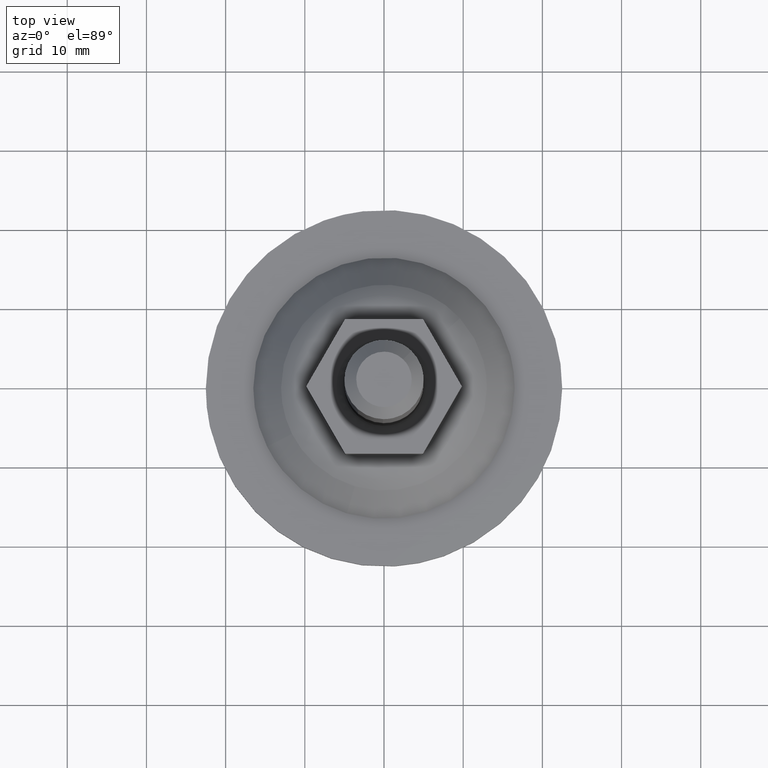
[diagram: clean part render]
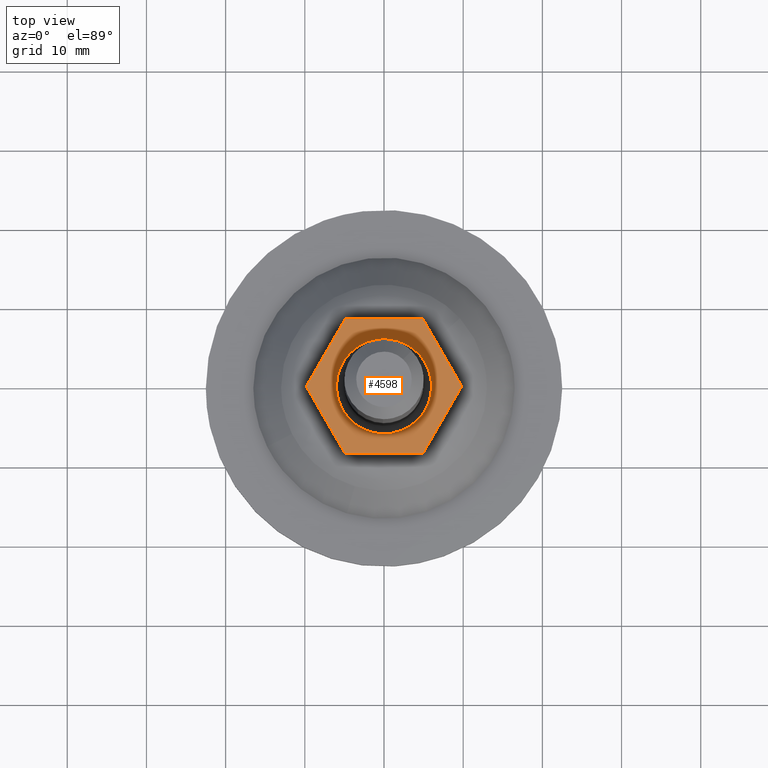
[diagram: same view with one face highlighted and labeled with its STEP entity id]
A machine part, top view. The second image highlights one B-rep face of the part: STEP entity #4598.
In plain terms, the highlighted face is a freeform B-spline surface patch.
Its self-contained STEP definition (entity closure, byte-faithful):
#3990=CARTESIAN_POINT('',(-6.0,0.0,17.0));
#3991=VERTEX_POINT('',#3990);
#3992=CARTESIAN_POINT('',(0.418399509544749,5.985394042717610,17.0));
#3993=VERTEX_POINT('',#3992);
#3994=CARTESIAN_POINT('',(-6.0,0.0,17.0));
#3995=CARTESIAN_POINT('',(-6.0,6.0,17.000000000000004));
#3996=CARTESIAN_POINT('',(0.0,6.0,17.0));
#3997=CARTESIAN_POINT('',(0.209454695362963,6.0,16.999999999999996));
#3998=CARTESIAN_POINT('',(0.418399509544749,5.985394042717610,17.000000000000004));
#4006=(BOUNDED_CURVE()B_SPLINE_CURVE(2,(#3994,#3995,#3996,#3997,#3998),.UNSPECIFIED.,.F.,.U.)B_SPLINE_CURVE_WITH_KNOTS((3,2,3),(0.500000000000000,0.750000000000000,0.762166313471432),.UNSPECIFIED.)CURVE()GEOMETRIC_REPRESENTATION_ITEM()RATIONAL_B_SPLINE_CURVE((1.0,0.707106781186548,1.0,0.985746277145035,0.972879876373177))REPRESENTATION_ITEM(''));
#4007=EDGE_CURVE('',#3991,#3993,#4006,.T.);
#4009=CARTESIAN_POINT('',(5.999526265163892,-0.075396239292410,17.0));
#4010=VERTEX_POINT('',#4009);
#4011=CARTESIAN_POINT('',(5.999526265163892,-0.075396239292410,17.000000000000007));
#4012=CARTESIAN_POINT('',(5.925071579457640,-6.000000000000001,16.999999999999996));
#4013=CARTESIAN_POINT('',(0.0,-6.0,17.0));
#4014=CARTESIAN_POINT('',(-6.0,-6.0,17.000000000000004));
#4015=CARTESIAN_POINT('',(-6.0,0.0,17.0));
#4023=(BOUNDED_CURVE()B_SPLINE_CURVE(2,(#4011,#4012,#4013,#4014,#4015),.UNSPECIFIED.,.F.,.U.)B_SPLINE_CURVE_WITH_KNOTS((3,2,3),(0.002215704077864,0.250000000000000,0.500000000000000),.UNSPECIFIED.)CURVE()GEOMETRIC_REPRESENTATION_ITEM()RATIONAL_B_SPLINE_CURVE((0.994854295644952,0.709702639983762,1.0,0.707106781186548,1.0))REPRESENTATION_ITEM(''));
#4024=EDGE_CURVE('',#4010,#3991,#4023,.T.);
#4076=CARTESIAN_POINT('',(6.0,0.0,17.0));
#4077=VERTEX_POINT('',#4076);
#4078=CARTESIAN_POINT('',(0.418399509544749,5.985394042717610,16.999999999999996));
#4079=CARTESIAN_POINT('',(5.999999999999999,5.595221083385582,17.000000000000004));
#4080=CARTESIAN_POINT('',(6.0,0.0,17.0));
#4088=(BOUNDED_CURVE()B_SPLINE_CURVE(2,(#4078,#4079,#4080),.UNSPECIFIED.,.F.,.U.)B_SPLINE_CURVE_WITH_KNOTS((3,3),(0.762166313471431,1.0),.UNSPECIFIED.)CURVE()GEOMETRIC_REPRESENTATION_ITEM()RATIONAL_B_SPLINE_CURVE((0.972879876373179,0.721360504041512,1.0))REPRESENTATION_ITEM(''));
#4089=EDGE_CURVE('',#3993,#4077,#4088,.T.);
#4095=CARTESIAN_POINT('',(6.0,0.0,17.0));
#4096=CARTESIAN_POINT('',(6.000000000000001,-0.037699607944375,17.000000000000004));
#4097=CARTESIAN_POINT('',(5.999526265163892,-0.075396239292410,17.000000000000007));
#4105=(BOUNDED_CURVE()B_SPLINE_CURVE(2,(#4095,#4096,#4097),.UNSPECIFIED.,.F.,.U.)B_SPLINE_CURVE_WITH_KNOTS((3,3),(0.0,0.002215704077864),.UNSPECIFIED.)CURVE()GEOMETRIC_REPRESENTATION_ITEM()RATIONAL_B_SPLINE_CURVE((1.0,0.997404141202786,0.994854295644952))REPRESENTATION_ITEM(''));
#4106=EDGE_CURVE('',#4077,#4010,#4105,.T.);
#4543=CARTESIAN_POINT('',(-10.795467662100060,-9.349149967050700,17.0));
#4544=CARTESIAN_POINT('',(10.795467960079810,-9.349149967050700,17.0));
#4545=CARTESIAN_POINT('',(-10.795467662100060,9.349150423026234,17.0));
#4546=CARTESIAN_POINT('',(10.795467960079810,9.349150423026234,17.0));
#4547=B_SPLINE_SURFACE_WITH_KNOTS('',1,1,((#4543,#4545),(#4544,#4546)),.UNSPECIFIED.,.F.,.F.,.U.,(2,2),(2,2),(0.0,21.590935622179870),(0.0,18.698300390076930),.UNSPECIFIED.);
#4548=CARTESIAN_POINT('',(4.907477000000000,8.500000000000000,17.0));
#4549=VERTEX_POINT('',#4548);
#4550=CARTESIAN_POINT('',(-4.907477000000000,8.500000000000000,17.0));
#4551=VERTEX_POINT('',#4550);
#4552=CARTESIAN_POINT('',(4.907477000000000,8.500000000000000,17.0));
#4553=CARTESIAN_POINT('',(-4.907477000000000,8.500000000000000,17.0));
#4554=QUASI_UNIFORM_CURVE('',1,(#4552,#4553),.UNSPECIFIED.,.F.,.U.);
#4555=EDGE_CURVE('',#4549,#4551,#4554,.T.);
#4556=ORIENTED_EDGE('',*,*,#4555,.T.);
#4557=CARTESIAN_POINT('',(-9.814954000000000,0.0,17.0));
#4558=VERTEX_POINT('',#4557);
#4559=CARTESIAN_POINT('',(-4.907477000000000,8.500000000000000,17.0));
#4560=CARTESIAN_POINT('',(-9.814954000000000,0.0,17.0));
#4561=QUASI_UNIFORM_CURVE('',1,(#4559,#4560),.UNSPECIFIED.,.F.,.U.);
#4562=EDGE_CURVE('',#4551,#4558,#4561,.T.);
#4563=ORIENTED_EDGE('',*,*,#4562,.T.);
#4564=CARTESIAN_POINT('',(-4.907477000000000,-8.500000000000000,17.0));
#4565=VERTEX_POINT('',#4564);
#4566=CARTESIAN_POINT('',(-9.814954000000000,0.0,17.0));
#4567=CARTESIAN_POINT('',(-4.907477000000000,-8.500000000000000,17.0));
#4568=QUASI_UNIFORM_CURVE('',1,(#4566,#4567),.UNSPECIFIED.,.F.,.U.);
#4569=EDGE_CURVE('',#4558,#4565,#4568,.T.);
#4570=ORIENTED_EDGE('',*,*,#4569,.T.);
#4571=CARTESIAN_POINT('',(4.907477000000000,-8.500000000000000,17.0));
#4572=VERTEX_POINT('',#4571);
#4573=CARTESIAN_POINT('',(-4.907477000000000,-8.500000000000000,17.0));
#4574=CARTESIAN_POINT('',(4.907477000000000,-8.500000000000000,17.0));
#4575=QUASI_UNIFORM_CURVE('',1,(#4573,#4574),.UNSPECIFIED.,.F.,.U.);
#4576=EDGE_CURVE('',#4565,#4572,#4575,.T.);
#4577=ORIENTED_EDGE('',*,*,#4576,.T.);
#4578=CARTESIAN_POINT('',(9.814954999999999,0.0,17.0));
#4579=VERTEX_POINT('',#4578);
#4580=CARTESIAN_POINT('',(4.907477000000000,-8.500000000000000,17.0));
#4581=CARTESIAN_POINT('',(9.814954999999999,0.0,17.0));
#4582=QUASI_UNIFORM_CURVE('',1,(#4580,#4581),.UNSPECIFIED.,.F.,.U.);
#4583=EDGE_CURVE('',#4572,#4579,#4582,.T.);
#4584=ORIENTED_EDGE('',*,*,#4583,.T.);
#4585=CARTESIAN_POINT('',(9.814954999999999,0.0,17.0));
#4586=CARTESIAN_POINT('',(4.907477000000000,8.500000000000000,17.0));
#4587=QUASI_UNIFORM_CURVE('',1,(#4585,#4586),.UNSPECIFIED.,.F.,.U.);
#4588=EDGE_CURVE('',#4579,#4549,#4587,.T.);
#4589=ORIENTED_EDGE('',*,*,#4588,.T.);
#4590=EDGE_LOOP('',(#4556,#4563,#4570,#4577,#4584,#4589));
#4591=FACE_OUTER_BOUND('',#4590,.T.);
#4592=ORIENTED_EDGE('',*,*,#4106,.T.);
#4593=ORIENTED_EDGE('',*,*,#4024,.T.);
#4594=ORIENTED_EDGE('',*,*,#4007,.T.);
#4595=ORIENTED_EDGE('',*,*,#4089,.T.);
#4596=EDGE_LOOP('',(#4592,#4593,#4594,#4595));
#4597=FACE_BOUND('',#4596,.T.);
#4598=ADVANCED_FACE('',(#4591,#4597),#4547,.T.);